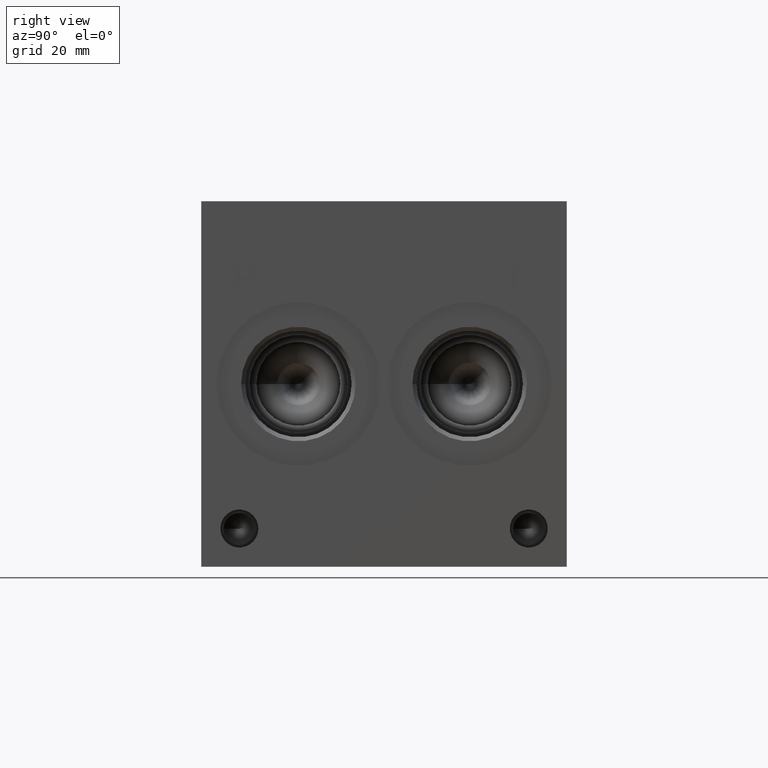
[diagram: clean part render]
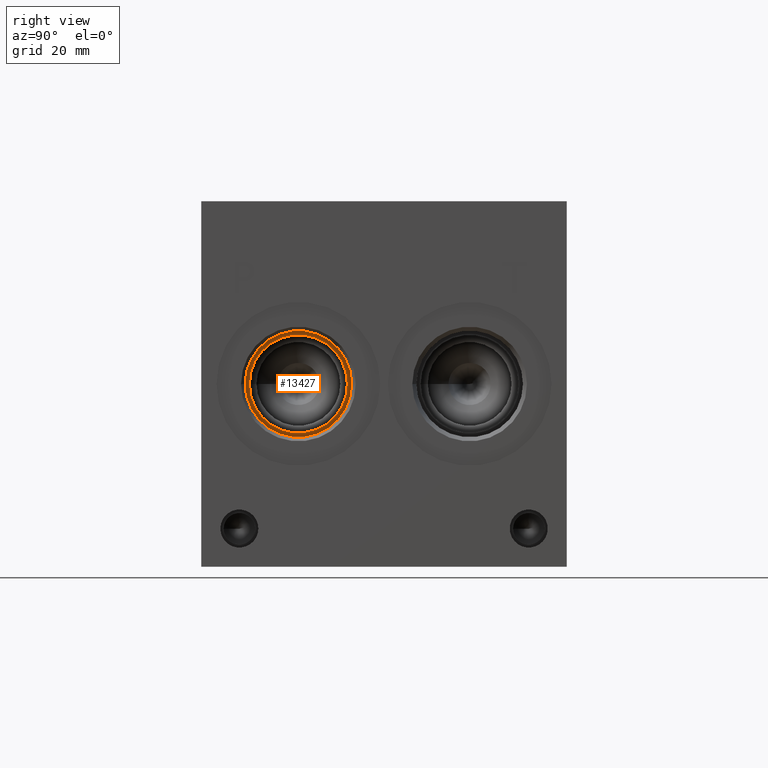
[diagram: same view with one face highlighted and labeled with its STEP entity id]
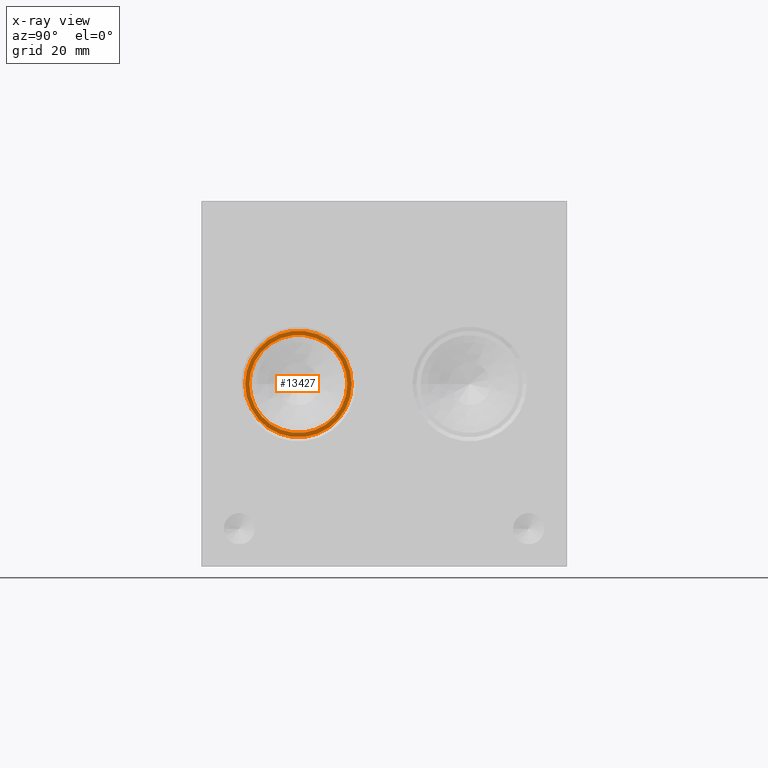
[diagram: x-ray of the same camera — body ghosted, the highlighted face saturated]
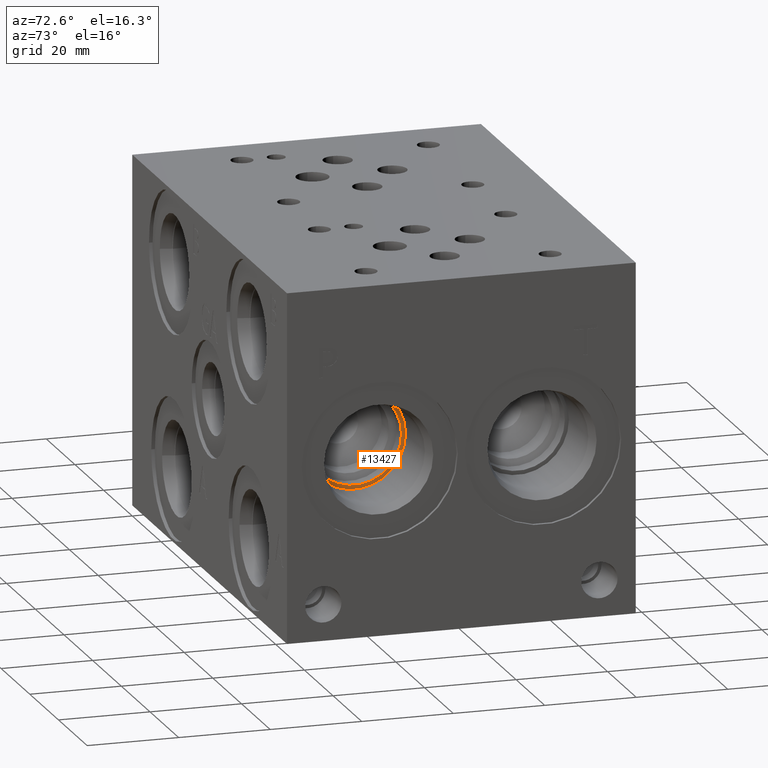
[diagram: same view with one face highlighted and labeled with its STEP entity id]
A machine part, right view. The second image highlights one B-rep face of the part: STEP entity #13427.
The next image is the same camera in x-ray: the body ghosted, the highlighted face saturated — about 0% of this face is hidden behind the body in this view.
A second angle (auxiliary view) of the same face is appended — the face is thin or edge-on in the first view.
In plain terms, the highlighted planar face has unit normal (1, 0, 0).
Its self-contained STEP definition (entity closure, byte-faithful):
#433=CIRCLE('',#14220,11.1125);
#434=CIRCLE('',#14221,11.1125);
#435=CIRCLE('',#14222,10.2235);
#574=FACE_BOUND('',#2595,.T.);
#1811=FACE_OUTER_BOUND('',#2594,.T.);
#2594=EDGE_LOOP('',(#11663,#11664));
#2595=EDGE_LOOP('',(#11665));
#6245=VERTEX_POINT('',#23262);
#6246=VERTEX_POINT('',#23263);
#6247=VERTEX_POINT('',#23266);
#8088=EDGE_CURVE('',#6245,#6246,#433,.T.);
#8089=EDGE_CURVE('',#6246,#6245,#434,.T.);
#8090=EDGE_CURVE('',#6247,#6247,#435,.T.);
#11663=ORIENTED_EDGE('',*,*,#8088,.T.);
#11664=ORIENTED_EDGE('',*,*,#8089,.T.);
#11665=ORIENTED_EDGE('',*,*,#8090,.F.);
#12270=PLANE('',#14219);
#13427=ADVANCED_FACE('',(#1811,#574),#12270,.T.);
#14219=AXIS2_PLACEMENT_3D('',#23261,#16928,#16929);
#14220=AXIS2_PLACEMENT_3D('',#23264,#16930,#16931);
#14221=AXIS2_PLACEMENT_3D('',#23265,#16932,#16933);
#14222=AXIS2_PLACEMENT_3D('',#23267,#16934,#16935);
#16928=DIRECTION('center_axis',(1.,0.,0.));
#16929=DIRECTION('ref_axis',(0.,1.,0.));
#16930=DIRECTION('center_axis',(1.,0.,0.));
#16931=DIRECTION('ref_axis',(0.,1.,0.));
#16932=DIRECTION('center_axis',(1.,0.,0.));
#16933=DIRECTION('ref_axis',(0.,1.,0.));
#16934=DIRECTION('center_axis',(1.,0.,0.));
#16935=DIRECTION('ref_axis',(0.,1.,0.));
#23261=CARTESIAN_POINT('Origin',(90.5002,20.2438,38.1));
#23262=CARTESIAN_POINT('',(90.5002,31.3563,38.1));
#23263=CARTESIAN_POINT('',(90.5002,9.1313,38.1));
#23264=CARTESIAN_POINT('Origin',(90.5002,20.2438,38.1));
#23265=CARTESIAN_POINT('Origin',(90.5002,20.2438,38.1));
#23266=CARTESIAN_POINT('',(90.5002,10.0203,38.1));
#23267=CARTESIAN_POINT('Origin',(90.5002,20.2438,38.1));